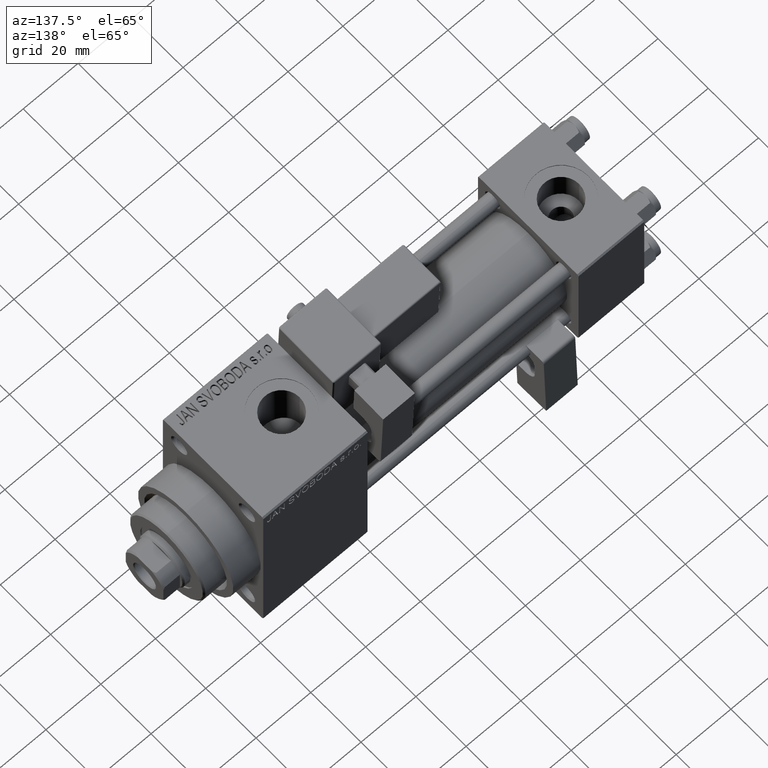
[diagram: clean part render]
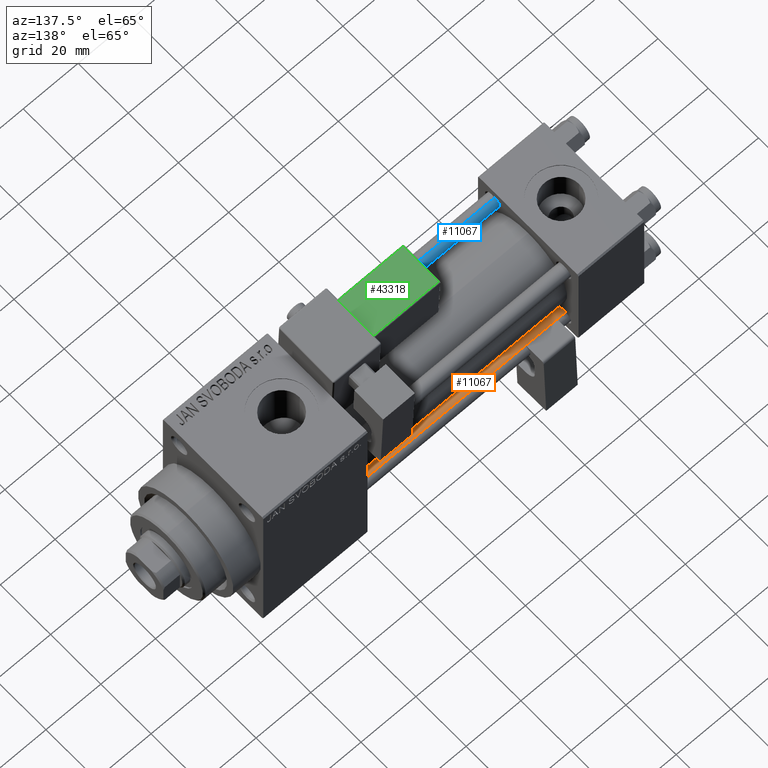
[diagram: same view with three faces highlighted in distinct colors, each labeled with its STEP entity id]
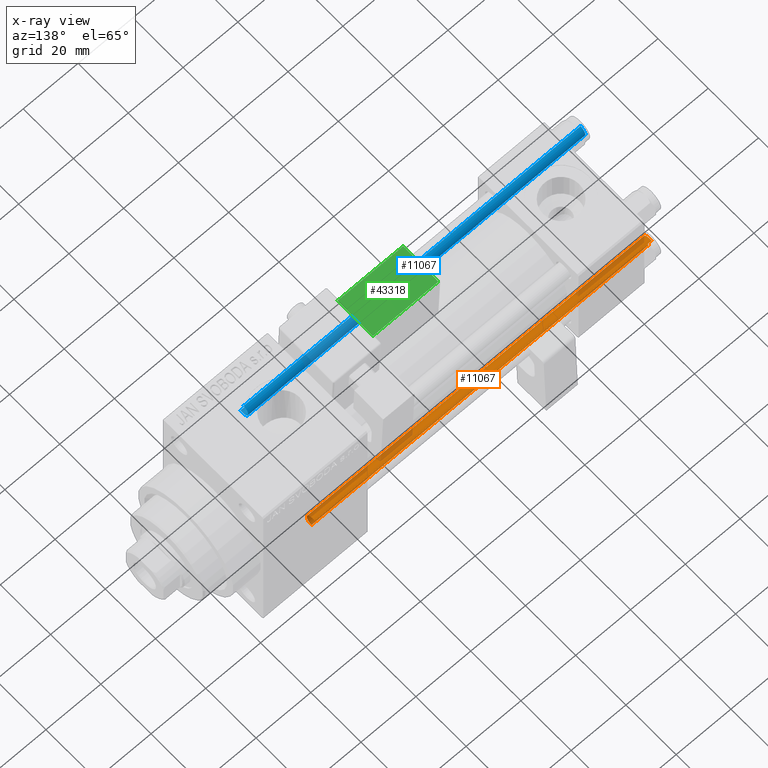
[diagram: x-ray of the same camera — body ghosted, the three highlighted faces saturated]
A machine part, auxiliary view with three faces highlighted in distinct colors.
The next image is the same camera in x-ray (body ghosted, the three faces saturated) — at least one of them is partly hidden behind the body in this view.
Their STEP definitions:

[orange] entity #11067 — the highlighted cylindrical surface (edge-blend (fillet) strip) has radius 2.5 mm, axis along (1, -0, 0).
#468 = ORIENTED_EDGE ( 'NONE', *, *, #24164, .F. ) ;
#2234 = EDGE_LOOP ( 'NONE', ( #468, #29569, #29826, #46538 ) ) ;
#2377 = DIRECTION ( 'NONE',  ( 1.000000000000000000, 0.000000000000000000, 0.000000000000000000 ) ) ;
#3521 = AXIS2_PLACEMENT_3D ( 'NONE', #4422, #7427, #22928 ) ;
#3762 = VERTEX_POINT ( 'NONE', #22683 ) ;
#4422 = CARTESIAN_POINT ( 'NONE',  ( 0.000000000000000000, 0.000000000000000000, 0.5000000000000004441 ) ) ;
#5257 = CARTESIAN_POINT ( 'NONE',  ( -2.500000000000000000, 0.000000000000000000, 124.0000000000000000 ) ) ;
#5740 = VERTEX_POINT ( 'NONE', #38468 ) ;
#5884 = FACE_OUTER_BOUND ( 'NONE', #2234, .T. ) ;
#7427 = DIRECTION ( 'NONE',  ( -0.000000000000000000, -0.000000000000000000, 1.000000000000000000 ) ) ;
#10315 = EDGE_CURVE ( 'NONE', #5740, #31224, #18524, .T. ) ;
#11067 = ADVANCED_FACE ( 'NONE', ( #5884 ), #40827, .T. ) ;
#12141 = AXIS2_PLACEMENT_3D ( 'NONE', #47801, #22282, #2377 ) ;
#15638 = DIRECTION ( 'NONE',  ( -0.000000000000000000, -0.000000000000000000, -1.000000000000000000 ) ) ;
#18524 = CIRCLE ( 'NONE', #12141, 2.500000000000000000 ) ;
#21860 = DIRECTION ( 'NONE',  ( -0.000000000000000000, -0.000000000000000000, -1.000000000000000000 ) ) ;
#22282 = DIRECTION ( 'NONE',  ( 0.000000000000000000, 0.000000000000000000, -1.000000000000000000 ) ) ;
#22683 = CARTESIAN_POINT ( 'NONE',  ( -2.500000000000000000, 0.000000000000000000, 0.5000000000000004441 ) ) ;
#22900 = CARTESIAN_POINT ( 'NONE',  ( 2.500000000000000000, 3.061616997868383141E-16, 124.0000000000000000 ) ) ;
#22928 = DIRECTION ( 'NONE',  ( 1.000000000000000000, 0.000000000000000000, 0.000000000000000000 ) ) ;
#23627 = EDGE_CURVE ( 'NONE', #31224, #3762, #39466, .T. ) ;
#24164 = EDGE_CURVE ( 'NONE', #5740, #45974, #29665, .T. ) ;
#24888 = DIRECTION ( 'NONE',  ( -1.000000000000000000, 0.000000000000000000, 0.000000000000000000 ) ) ;
#25065 = CIRCLE ( 'NONE', #3521, 2.500000000000000000 ) ;
#25623 = CARTESIAN_POINT ( 'NONE',  ( 0.000000000000000000, 0.000000000000000000, 124.0000000000000000 ) ) ;
#28636 = VECTOR ( 'NONE', #15638, 1000.000000000000000 ) ;
#29569 = ORIENTED_EDGE ( 'NONE', *, *, #10315, .T. ) ;
#29665 = LINE ( 'NONE', #22900, #28636 ) ;
#29826 = ORIENTED_EDGE ( 'NONE', *, *, #23627, .T. ) ;
#31224 = VERTEX_POINT ( 'NONE', #37966 ) ;
#33221 = DIRECTION ( 'NONE',  ( -0.000000000000000000, -0.000000000000000000, -1.000000000000000000 ) ) ;
#35790 = VECTOR ( 'NONE', #33221, 1000.000000000000000 ) ;
#37966 = CARTESIAN_POINT ( 'NONE',  ( -2.500000000000000000, 0.000000000000000000, 123.5000000000000000 ) ) ;
#38468 = CARTESIAN_POINT ( 'NONE',  ( 2.500000000000000000, 3.061616997868383141E-16, 123.5000000000000000 ) ) ;
#39319 = AXIS2_PLACEMENT_3D ( 'NONE', #25623, #21860, #24888 ) ;
#39466 = LINE ( 'NONE', #5257, #35790 ) ;
#39518 = EDGE_CURVE ( 'NONE', #3762, #45974, #25065, .T. ) ;
#40827 = CYLINDRICAL_SURFACE ( 'NONE', #39319, 2.500000000000000000 ) ;
#41049 = CARTESIAN_POINT ( 'NONE',  ( 2.500000000000000000, 3.061616997868383141E-16, 0.5000000000000004441 ) ) ;
#45974 = VERTEX_POINT ( 'NONE', #41049 ) ;
#46538 = ORIENTED_EDGE ( 'NONE', *, *, #39518, .T. ) ;
#47801 = CARTESIAN_POINT ( 'NONE',  ( 0.000000000000000000, 0.000000000000000000, 123.5000000000000000 ) ) ;

[blue] entity #11067 — the highlighted cylindrical surface (edge-blend (fillet) strip) has radius 2.5 mm, axis along (1, 0, 0).
#468 = ORIENTED_EDGE ( 'NONE', *, *, #24164, .F. ) ;
#2234 = EDGE_LOOP ( 'NONE', ( #468, #29569, #29826, #46538 ) ) ;
#2377 = DIRECTION ( 'NONE',  ( 1.000000000000000000, 0.000000000000000000, 0.000000000000000000 ) ) ;
#3521 = AXIS2_PLACEMENT_3D ( 'NONE', #4422, #7427, #22928 ) ;
#3762 = VERTEX_POINT ( 'NONE', #22683 ) ;
#4422 = CARTESIAN_POINT ( 'NONE',  ( 0.000000000000000000, 0.000000000000000000, 0.5000000000000004441 ) ) ;
#5257 = CARTESIAN_POINT ( 'NONE',  ( -2.500000000000000000, 0.000000000000000000, 124.0000000000000000 ) ) ;
#5740 = VERTEX_POINT ( 'NONE', #38468 ) ;
#5884 = FACE_OUTER_BOUND ( 'NONE', #2234, .T. ) ;
#7427 = DIRECTION ( 'NONE',  ( -0.000000000000000000, -0.000000000000000000, 1.000000000000000000 ) ) ;
#10315 = EDGE_CURVE ( 'NONE', #5740, #31224, #18524, .T. ) ;
#11067 = ADVANCED_FACE ( 'NONE', ( #5884 ), #40827, .T. ) ;
#12141 = AXIS2_PLACEMENT_3D ( 'NONE', #47801, #22282, #2377 ) ;
#15638 = DIRECTION ( 'NONE',  ( -0.000000000000000000, -0.000000000000000000, -1.000000000000000000 ) ) ;
#18524 = CIRCLE ( 'NONE', #12141, 2.500000000000000000 ) ;
#21860 = DIRECTION ( 'NONE',  ( -0.000000000000000000, -0.000000000000000000, -1.000000000000000000 ) ) ;
#22282 = DIRECTION ( 'NONE',  ( 0.000000000000000000, 0.000000000000000000, -1.000000000000000000 ) ) ;
#22683 = CARTESIAN_POINT ( 'NONE',  ( -2.500000000000000000, 0.000000000000000000, 0.5000000000000004441 ) ) ;
#22900 = CARTESIAN_POINT ( 'NONE',  ( 2.500000000000000000, 3.061616997868383141E-16, 124.0000000000000000 ) ) ;
#22928 = DIRECTION ( 'NONE',  ( 1.000000000000000000, 0.000000000000000000, 0.000000000000000000 ) ) ;
#23627 = EDGE_CURVE ( 'NONE', #31224, #3762, #39466, .T. ) ;
#24164 = EDGE_CURVE ( 'NONE', #5740, #45974, #29665, .T. ) ;
#24888 = DIRECTION ( 'NONE',  ( -1.000000000000000000, 0.000000000000000000, 0.000000000000000000 ) ) ;
#25065 = CIRCLE ( 'NONE', #3521, 2.500000000000000000 ) ;
#25623 = CARTESIAN_POINT ( 'NONE',  ( 0.000000000000000000, 0.000000000000000000, 124.0000000000000000 ) ) ;
#28636 = VECTOR ( 'NONE', #15638, 1000.000000000000000 ) ;
#29569 = ORIENTED_EDGE ( 'NONE', *, *, #10315, .T. ) ;
#29665 = LINE ( 'NONE', #22900, #28636 ) ;
#29826 = ORIENTED_EDGE ( 'NONE', *, *, #23627, .T. ) ;
#31224 = VERTEX_POINT ( 'NONE', #37966 ) ;
#33221 = DIRECTION ( 'NONE',  ( -0.000000000000000000, -0.000000000000000000, -1.000000000000000000 ) ) ;
#35790 = VECTOR ( 'NONE', #33221, 1000.000000000000000 ) ;
#37966 = CARTESIAN_POINT ( 'NONE',  ( -2.500000000000000000, 0.000000000000000000, 123.5000000000000000 ) ) ;
#38468 = CARTESIAN_POINT ( 'NONE',  ( 2.500000000000000000, 3.061616997868383141E-16, 123.5000000000000000 ) ) ;
#39319 = AXIS2_PLACEMENT_3D ( 'NONE', #25623, #21860, #24888 ) ;
#39466 = LINE ( 'NONE', #5257, #35790 ) ;
#39518 = EDGE_CURVE ( 'NONE', #3762, #45974, #25065, .T. ) ;
#40827 = CYLINDRICAL_SURFACE ( 'NONE', #39319, 2.500000000000000000 ) ;
#41049 = CARTESIAN_POINT ( 'NONE',  ( 2.500000000000000000, 3.061616997868383141E-16, 0.5000000000000004441 ) ) ;
#45974 = VERTEX_POINT ( 'NONE', #41049 ) ;
#46538 = ORIENTED_EDGE ( 'NONE', *, *, #39518, .T. ) ;
#47801 = CARTESIAN_POINT ( 'NONE',  ( 0.000000000000000000, 0.000000000000000000, 123.5000000000000000 ) ) ;

[green] entity #43318 — the highlighted planar face has unit normal (0, -0.0353, -0.9994).
#306 = CARTESIAN_POINT ( 'NONE',  ( 33.75000000000000000, -14.24999999999999822, 2.000000000000004885 ) ) ;
#4960 = VERTEX_POINT ( 'NONE', #29392 ) ;
#7032 = VECTOR ( 'NONE', #7760, 1000.000000000000000 ) ;
#7534 = PLANE ( 'NONE',  #44309 ) ;
#7748 = VERTEX_POINT ( 'NONE', #18417 ) ;
#7760 = DIRECTION ( 'NONE',  ( -1.000000000000000000, 0.000000000000000000, -1.334402673828313339E-16 ) ) ;
#9266 = EDGE_LOOP ( 'NONE', ( #32947, #36221, #43396, #10886 ) ) ;
#10566 = VECTOR ( 'NONE', #49079, 1000.000000000000000 ) ;
#10886 = ORIENTED_EDGE ( 'NONE', *, *, #36102, .T. ) ;
#13357 = CARTESIAN_POINT ( 'NONE',  ( 33.25000000000000000, -29.25000000000000000, 2.000000000000003109 ) ) ;
#14110 = CARTESIAN_POINT ( 'NONE',  ( 9.250000000000005329, -14.75000000000000000, 2.000000000000001332 ) ) ;
#14524 = VECTOR ( 'NONE', #28614, 1000.000000000000000 ) ;
#15009 = CARTESIAN_POINT ( 'NONE',  ( 33.75000000000000000, -28.74999999999999645, 2.000000000000003109 ) ) ;
#15461 = DIRECTION ( 'NONE',  ( 1.000000000000000000, -0.000000000000000000, 1.334402673828313339E-16 ) ) ;
#15531 = DIRECTION ( 'NONE',  ( 1.000000000000000000, 0.000000000000000000, 1.334402673828313339E-16 ) ) ;
#16049 = CARTESIAN_POINT ( 'NONE',  ( 33.25000000000000000, -14.75000000000000000, 2.000000000000004885 ) ) ;
#18417 = CARTESIAN_POINT ( 'NONE',  ( 33.25000000000000000, -28.74999999999999645, 2.000000000000003109 ) ) ;
#19027 = DIRECTION ( 'NONE',  ( -1.334402673828313339E-16, -1.156482317317871725E-16, 1.000000000000000000 ) ) ;
#20867 = LINE ( 'NONE', #13357, #14524 ) ;
#23517 = EDGE_CURVE ( 'NONE', #7748, #4960, #41976, .T. ) ;
#26647 = CARTESIAN_POINT ( 'NONE',  ( 9.250000000000005329, -14.24999999999999822, 2.000000000000001776 ) ) ;
#27140 = LINE ( 'NONE', #26647, #10566 ) ;
#28614 = DIRECTION ( 'NONE',  ( 5.473822126268816683E-48, -1.000000000000000000, -1.156482317317871725E-16 ) ) ;
#29392 = CARTESIAN_POINT ( 'NONE',  ( 9.250000000000005329, -28.74999999999999645, 2.000000000000000000 ) ) ;
#32947 = ORIENTED_EDGE ( 'NONE', *, *, #35338, .T. ) ;
#34488 = VERTEX_POINT ( 'NONE', #16049 ) ;
#34519 = FACE_OUTER_BOUND ( 'NONE', #9266, .T. ) ;
#35106 = EDGE_CURVE ( 'NONE', #4960, #45718, #27140, .T. ) ;
#35338 = EDGE_CURVE ( 'NONE', #34488, #7748, #20867, .T. ) ;
#36102 = EDGE_CURVE ( 'NONE', #45718, #34488, #44931, .T. ) ;
#36221 = ORIENTED_EDGE ( 'NONE', *, *, #23517, .T. ) ;
#40902 = VECTOR ( 'NONE', #15461, 1000.000000000000000 ) ;
#41188 = CARTESIAN_POINT ( 'NONE',  ( 33.75000000000000000, -14.75000000000000000, 2.000000000000004885 ) ) ;
#41976 = LINE ( 'NONE', #15009, #7032 ) ;
#43318 = ADVANCED_FACE ( 'NONE', ( #34519 ), #7534, .F. ) ;
#43396 = ORIENTED_EDGE ( 'NONE', *, *, #35106, .T. ) ;
#44309 = AXIS2_PLACEMENT_3D ( 'NONE', #306, #19027, #15531 ) ;
#44931 = LINE ( 'NONE', #41188, #40902 ) ;
#45718 = VERTEX_POINT ( 'NONE', #14110 ) ;
#49079 = DIRECTION ( 'NONE',  ( -1.543213096464132036E-32, 1.000000000000000000, 1.156482317317871725E-16 ) ) ;